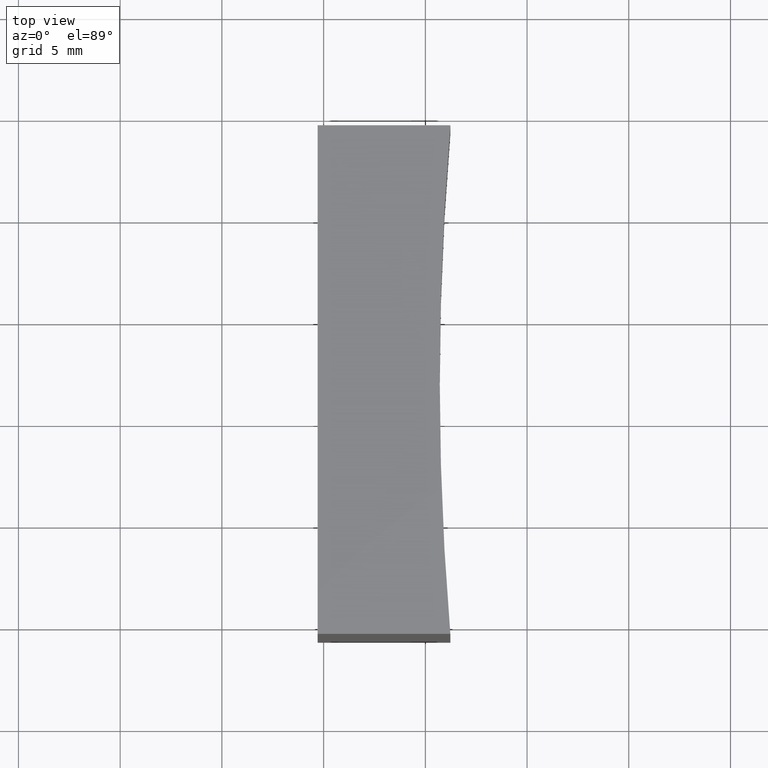
[diagram: clean part render]
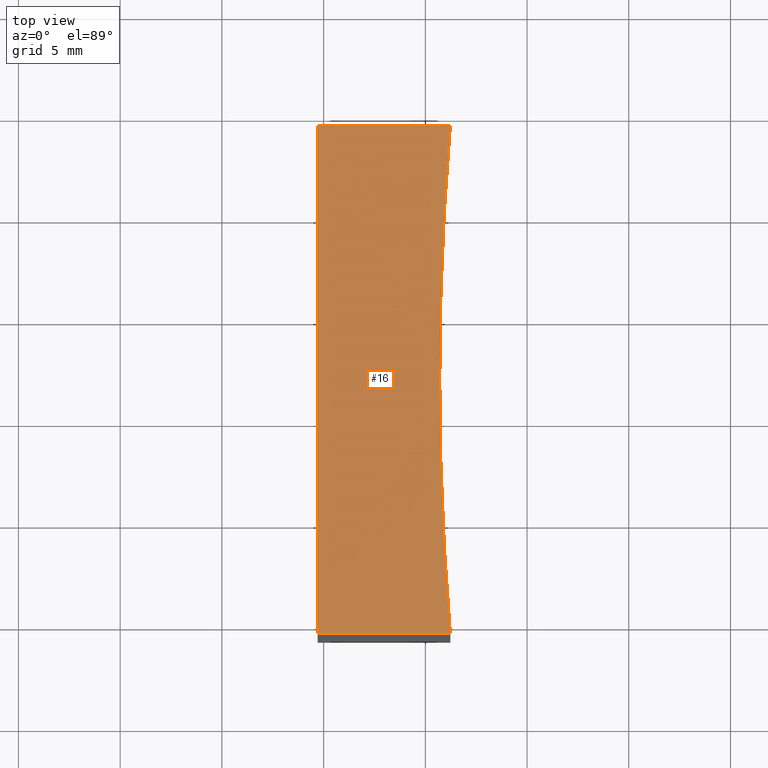
[diagram: same view with one face highlighted and labeled with its STEP entity id]
A machine part, top view. The second image highlights one B-rep face of the part: STEP entity #16.
In plain terms, the highlighted planar face has unit normal (0, 0, 1).
Its self-contained STEP definition (entity closure, byte-faithful):
#1 = LINE ( 'NONE', #15, #166 ) ;
#15 = CARTESIAN_POINT ( 'NONE',  ( 284.7071356312820900, 54.35792926776707600, 25.00000000000000000 ) ) ;
#16 = ADVANCED_FACE ( 'NONE', ( #123 ), #69, .T. ) ;
#24 = AXIS2_PLACEMENT_3D ( 'NONE', #177, #118, #70 ) ;
#29 = DIRECTION ( 'NONE',  ( 1.000000000000000000, 0.0000000000000000000, 0.0000000000000000000 ) ) ;
#34 = ORIENTED_EDGE ( 'NONE', *, *, #131, .T. ) ;
#63 = VERTEX_POINT ( 'NONE', #160 ) ;
#68 = DIRECTION ( 'NONE',  ( 1.000000000000000000, -0.0000000000000000000, -0.0000000000000000000 ) ) ;
#69 = PLANE ( 'NONE',  #169 ) ;
#70 = DIRECTION ( 'NONE',  ( 1.000000000000000000, 0.0000000000000000000, 0.0000000000000000000 ) ) ;
#74 = EDGE_LOOP ( 'NONE', ( #227, #183, #157, #34, #132 ) ) ;
#99 = CARTESIAN_POINT ( 'NONE',  ( 291.2288763425366400, 54.35792926776707600, 25.00000000000000000 ) ) ;
#103 = CARTESIAN_POINT ( 'NONE',  ( 440.7071356313041400, 66.85792926776707600, 25.00000000000000000 ) ) ;
#110 = VERTEX_POINT ( 'NONE', #218 ) ;
#118 = DIRECTION ( 'NONE',  ( -0.0000000000000000000, -0.0000000000000000000, -1.000000000000000000 ) ) ;
#121 = VECTOR ( 'NONE', #68, 1000.000000000000000 ) ;
#123 = FACE_OUTER_BOUND ( 'NONE', #74, .T. ) ;
#125 = LINE ( 'NONE', #173, #204 ) ;
#126 = EDGE_CURVE ( 'NONE', #185, #222, #128, .T. ) ;
#128 = CIRCLE ( 'NONE', #24, 150.0000000000000300 ) ;
#131 = EDGE_CURVE ( 'NONE', #222, #233, #221, .T. ) ;
#132 = ORIENTED_EDGE ( 'NONE', *, *, #192, .T. ) ;
#134 = CARTESIAN_POINT ( 'NONE',  ( 440.7071356313041400, 66.85792926776707600, 25.00000000000000000 ) ) ;
#136 = CARTESIAN_POINT ( 'NONE',  ( 290.7071356313041400, 66.85792926776707600, 25.00000000000000000 ) ) ;
#137 = CARTESIAN_POINT ( 'NONE',  ( 291.2288763425366400, 79.35792926776707600, 25.00000000000000000 ) ) ;
#140 = CARTESIAN_POINT ( 'NONE',  ( 291.2288763425366400, 54.35792926776709800, 25.00000000000000000 ) ) ;
#155 = EDGE_CURVE ( 'NONE', #110, #185, #187, .T. ) ;
#156 = DIRECTION ( 'NONE',  ( -0.0000000000000000000, -1.000000000000000000, -0.0000000000000000000 ) ) ;
#157 = ORIENTED_EDGE ( 'NONE', *, *, #126, .T. ) ;
#160 = CARTESIAN_POINT ( 'NONE',  ( 284.7071356312820900, 79.35792926776707600, 25.00000000000000000 ) ) ;
#166 = VECTOR ( 'NONE', #156, 1000.000000000000000 ) ;
#169 = AXIS2_PLACEMENT_3D ( 'NONE', #103, #194, #197 ) ;
#173 = CARTESIAN_POINT ( 'NONE',  ( 284.7071356312820900, 79.35792926776707600, 25.00000000000000000 ) ) ;
#174 = EDGE_CURVE ( 'NONE', #63, #110, #1, .T. ) ;
#177 = CARTESIAN_POINT ( 'NONE',  ( 440.7071356313041400, 66.85792926776707600, 25.00000000000000000 ) ) ;
#183 = ORIENTED_EDGE ( 'NONE', *, *, #155, .T. ) ;
#184 = AXIS2_PLACEMENT_3D ( 'NONE', #134, #232, #29 ) ;
#185 = VERTEX_POINT ( 'NONE', #140 ) ;
#187 = LINE ( 'NONE', #99, #121 ) ;
#188 = DIRECTION ( 'NONE',  ( -1.000000000000000000, -0.0000000000000000000, -0.0000000000000000000 ) ) ;
#192 = EDGE_CURVE ( 'NONE', #233, #63, #125, .T. ) ;
#194 = DIRECTION ( 'NONE',  ( 0.0000000000000000000, 0.0000000000000000000, 1.000000000000000000 ) ) ;
#197 = DIRECTION ( 'NONE',  ( 1.000000000000000000, 0.0000000000000000000, -0.0000000000000000000 ) ) ;
#204 = VECTOR ( 'NONE', #188, 1000.000000000000000 ) ;
#218 = CARTESIAN_POINT ( 'NONE',  ( 284.7071356312820900, 54.35792926776707600, 25.00000000000000000 ) ) ;
#221 = CIRCLE ( 'NONE', #184, 150.0000000000000300 ) ;
#222 = VERTEX_POINT ( 'NONE', #136 ) ;
#227 = ORIENTED_EDGE ( 'NONE', *, *, #174, .T. ) ;
#232 = DIRECTION ( 'NONE',  ( -0.0000000000000000000, -0.0000000000000000000, -1.000000000000000000 ) ) ;
#233 = VERTEX_POINT ( 'NONE', #137 ) ;